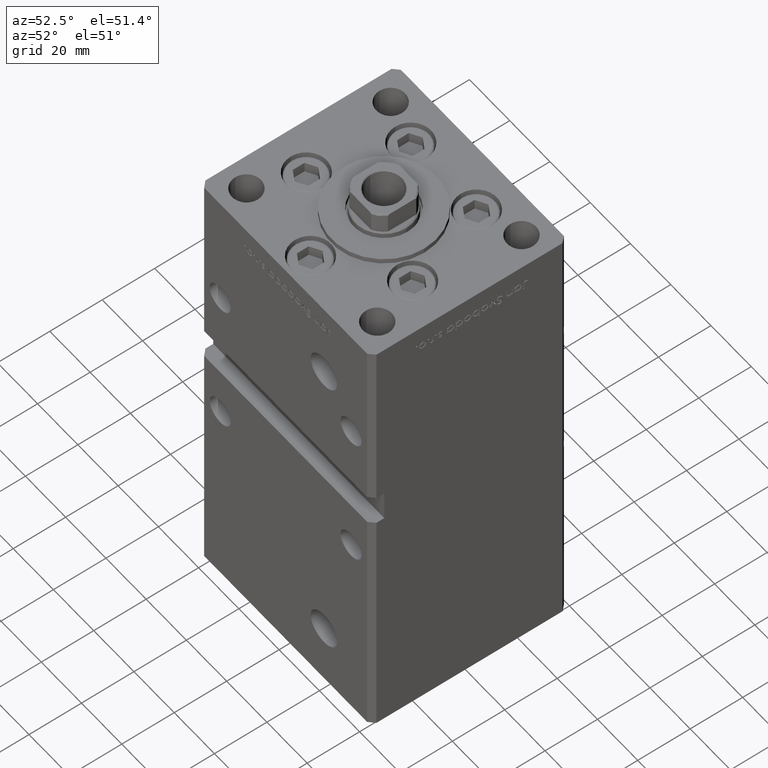
[diagram: clean part render]
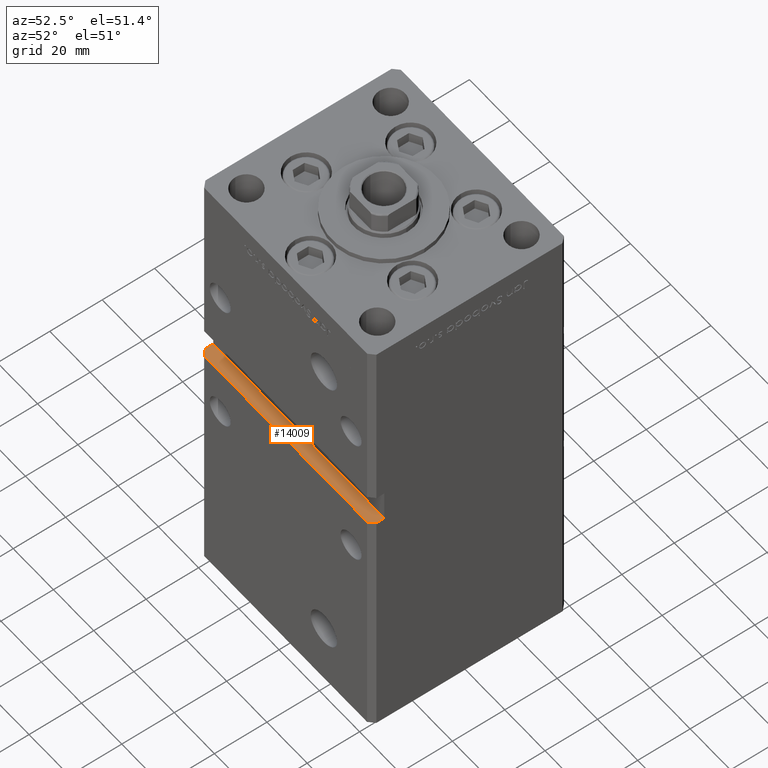
[diagram: same view with one face highlighted and labeled with its STEP entity id]
A machine part, auxiliary view. The second image highlights one B-rep face of the part: STEP entity #14009.
In plain terms, the highlighted planar face has unit normal (0, 0, -1).
Its self-contained STEP definition (entity closure, byte-faithful):
#996 = ORIENTED_EDGE ( 'NONE', *, *, #31663, .F. ) ;
#2542 = DIRECTION ( 'NONE',  ( 0.7071067811865474617, 0.7071067811865474617, 0.000000000000000000 ) ) ;
#3505 = ORIENTED_EDGE ( 'NONE', *, *, #14480, .F. ) ;
#3620 = CARTESIAN_POINT ( 'NONE',  ( -42.49999999999998579, -32.50000000000000711, 82.00000000000000000 ) ) ;
#4245 = LINE ( 'NONE', #37318, #44677 ) ;
#4660 = DIRECTION ( 'NONE',  ( -0.000000000000000000, -1.000000000000000000, -0.000000000000000000 ) ) ;
#5654 = LINE ( 'NONE', #9693, #35198 ) ;
#7830 = VECTOR ( 'NONE', #2542, 1000.000000000000114 ) ;
#9693 = CARTESIAN_POINT ( 'NONE',  ( -42.49999999999998579, -32.50000000000000711, 82.00000000000000000 ) ) ;
#10161 = CARTESIAN_POINT ( 'NONE',  ( -42.49999999999998579, -35.49999999999996447, 82.00000000000000000 ) ) ;
#10169 = AXIS2_PLACEMENT_3D ( 'NONE', #3620, #35899, #16248 ) ;
#11357 = CARTESIAN_POINT ( 'NONE',  ( -42.49999999999998579, -35.50000000000000711, 82.00000000000000000 ) ) ;
#12216 = FACE_OUTER_BOUND ( 'NONE', #19643, .T. ) ;
#12768 = VERTEX_POINT ( 'NONE', #18742 ) ;
#12934 = VECTOR ( 'NONE', #46149, 1000.000000000000000 ) ;
#14009 = ADVANCED_FACE ( 'NONE', ( #12216 ), #15469, .F. ) ;
#14480 = EDGE_CURVE ( 'NONE', #49452, #39707, #48202, .T. ) ;
#14668 = CARTESIAN_POINT ( 'NONE',  ( 42.49999999999998579, -35.50000000000000711, 82.00000000000000000 ) ) ;
#14792 = CARTESIAN_POINT ( 'NONE',  ( -42.49999999999998579, -32.50000000000000711, 82.00000000000000000 ) ) ;
#15469 = PLANE ( 'NONE',  #10169 ) ;
#16248 = DIRECTION ( 'NONE',  ( -1.000000000000000000, 0.000000000000000000, -0.000000000000000000 ) ) ;
#17304 = CARTESIAN_POINT ( 'NONE',  ( -40.49999999999998579, -37.50000000000000711, 82.00000000000000000 ) ) ;
#17648 = CARTESIAN_POINT ( 'NONE',  ( -42.49999999999998579, -37.50000000000000711, 82.00000000000000000 ) ) ;
#18180 = LINE ( 'NONE', #17648, #12934 ) ;
#18260 = VERTEX_POINT ( 'NONE', #35195 ) ;
#18317 = ORIENTED_EDGE ( 'NONE', *, *, #34029, .T. ) ;
#18477 = EDGE_CURVE ( 'NONE', #52258, #23859, #4245, .T. ) ;
#18687 = LINE ( 'NONE', #14668, #7830 ) ;
#18742 = CARTESIAN_POINT ( 'NONE',  ( -42.49999999999998579, -32.50000000000000711, 82.00000000000000000 ) ) ;
#19643 = EDGE_LOOP ( 'NONE', ( #18317, #31605, #30396, #996, #28578, #3505 ) ) ;
#21559 = CARTESIAN_POINT ( 'NONE',  ( 42.49999999999998579, -35.50000000000000711, 82.00000000000000000 ) ) ;
#23859 = VERTEX_POINT ( 'NONE', #21559 ) ;
#27754 = DIRECTION ( 'NONE',  ( -0.7071067811865474617, 0.7071067811865474617, 0.000000000000000000 ) ) ;
#28578 = ORIENTED_EDGE ( 'NONE', *, *, #51705, .T. ) ;
#29969 = VECTOR ( 'NONE', #27754, 1000.000000000000114 ) ;
#30396 = ORIENTED_EDGE ( 'NONE', *, *, #18477, .F. ) ;
#31605 = ORIENTED_EDGE ( 'NONE', *, *, #36356, .T. ) ;
#31663 = EDGE_CURVE ( 'NONE', #12768, #52258, #5654, .T. ) ;
#34029 = EDGE_CURVE ( 'NONE', #49452, #18260, #18180, .T. ) ;
#35195 = CARTESIAN_POINT ( 'NONE',  ( 40.49999999999998579, -37.50000000000000711, 82.00000000000000000 ) ) ;
#35198 = VECTOR ( 'NONE', #51106, 1000.000000000000000 ) ;
#35899 = DIRECTION ( 'NONE',  ( 0.000000000000000000, 0.000000000000000000, -1.000000000000000000 ) ) ;
#36356 = EDGE_CURVE ( 'NONE', #18260, #23859, #18687, .T. ) ;
#37318 = CARTESIAN_POINT ( 'NONE',  ( 42.49999999999998579, -32.50000000000000711, 82.00000000000000000 ) ) ;
#39707 = VERTEX_POINT ( 'NONE', #10161 ) ;
#41835 = CARTESIAN_POINT ( 'NONE',  ( 42.49999999999998579, -32.50000000000000000, 82.00000000000000000 ) ) ;
#43275 = LINE ( 'NONE', #14792, #47659 ) ;
#44677 = VECTOR ( 'NONE', #52937, 1000.000000000000000 ) ;
#46149 = DIRECTION ( 'NONE',  ( 1.000000000000000000, 0.000000000000000000, 0.000000000000000000 ) ) ;
#47659 = VECTOR ( 'NONE', #4660, 1000.000000000000000 ) ;
#48202 = LINE ( 'NONE', #11357, #29969 ) ;
#49452 = VERTEX_POINT ( 'NONE', #17304 ) ;
#51106 = DIRECTION ( 'NONE',  ( 1.000000000000000000, 0.000000000000000000, 0.000000000000000000 ) ) ;
#51705 = EDGE_CURVE ( 'NONE', #12768, #39707, #43275, .T. ) ;
#52258 = VERTEX_POINT ( 'NONE', #41835 ) ;
#52937 = DIRECTION ( 'NONE',  ( -0.000000000000000000, -1.000000000000000000, -0.000000000000000000 ) ) ;